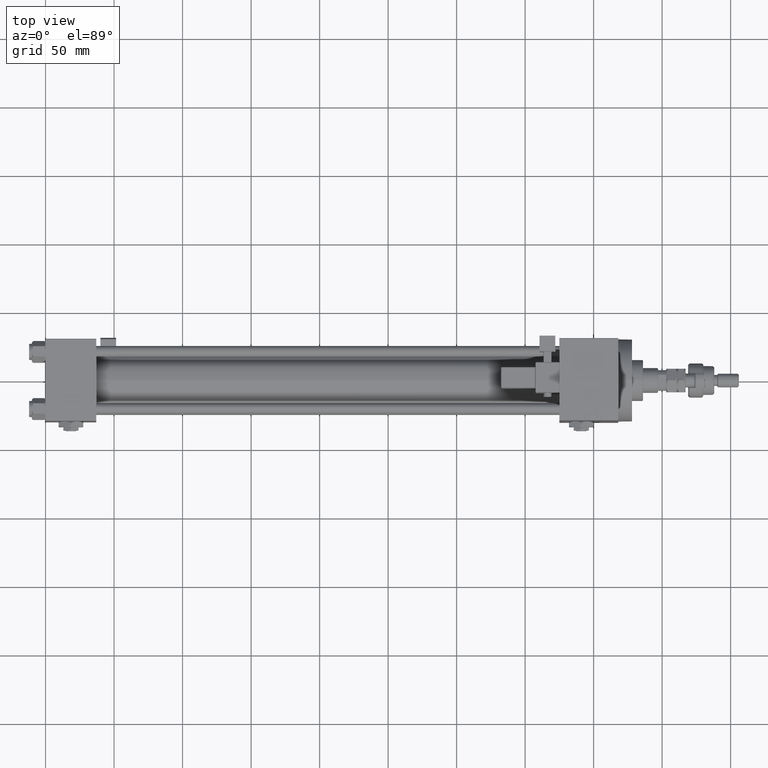
[diagram: clean part render]
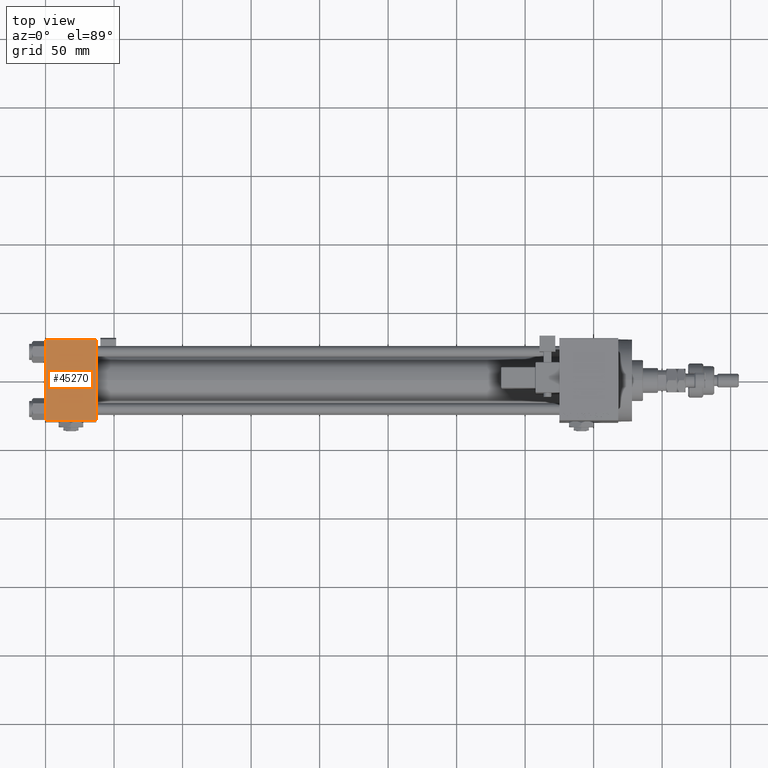
[diagram: same view with one face highlighted and labeled with its STEP entity id]
A machine part, top view. The second image highlights one B-rep face of the part: STEP entity #45270.
In plain terms, the highlighted planar face has unit normal (0, 0, -1).
Its self-contained STEP definition (entity closure, byte-faithful):
#653 = VERTEX_POINT ( 'NONE', #3364 ) ;
#1716 = DIRECTION ( 'NONE',  ( 1.000000000000000000, 0.000000000000000000, 0.000000000000000000 ) ) ;
#3364 = CARTESIAN_POINT ( 'NONE',  ( 37.00000000000000000, 29.49999999999999289, 30.00000000000000000 ) ) ;
#4483 = DIRECTION ( 'NONE',  ( -1.000000000000000000, 0.000000000000000000, 0.000000000000000000 ) ) ;
#4820 = CARTESIAN_POINT ( 'NONE',  ( 37.00000000000000000, 29.99999999999999289, 30.00000000000000000 ) ) ;
#7028 = VERTEX_POINT ( 'NONE', #51157 ) ;
#8303 = ORIENTED_EDGE ( 'NONE', *, *, #39056, .T. ) ;
#8410 = LINE ( 'NONE', #4820, #32869 ) ;
#8612 = LINE ( 'NONE', #45674, #48942 ) ;
#9210 = CARTESIAN_POINT ( 'NONE',  ( 37.00000000000000000, -29.49999999999998579, 29.99999999999999289 ) ) ;
#11327 = VECTOR ( 'NONE', #15986, 1000.000000000000000 ) ;
#11938 = ORIENTED_EDGE ( 'NONE', *, *, #34884, .T. ) ;
#13858 = CARTESIAN_POINT ( 'NONE',  ( 0.000000000000000000, 29.49999999999999289, 30.00000000000000000 ) ) ;
#14118 = AXIS2_PLACEMENT_3D ( 'NONE', #50184, #37794, #21092 ) ;
#15375 = FACE_OUTER_BOUND ( 'NONE', #25571, .T. ) ;
#15986 = DIRECTION ( 'NONE',  ( 0.000000000000000000, -1.000000000000000000, -1.156482317317871725E-16 ) ) ;
#21092 = DIRECTION ( 'NONE',  ( 0.000000000000000000, 1.000000000000000000, 1.156482317317871725E-16 ) ) ;
#23401 = CARTESIAN_POINT ( 'NONE',  ( 0.000000000000000000, 29.99999999999999289, 30.00000000000000000 ) ) ;
#25342 = EDGE_CURVE ( 'NONE', #653, #30373, #8410, .T. ) ;
#25571 = EDGE_LOOP ( 'NONE', ( #8303, #36013, #53220, #11938 ) ) ;
#28061 = LINE ( 'NONE', #23401, #11327 ) ;
#28801 = VECTOR ( 'NONE', #1716, 1000.000000000000000 ) ;
#30373 = VERTEX_POINT ( 'NONE', #9210 ) ;
#32762 = VERTEX_POINT ( 'NONE', #13858 ) ;
#32869 = VECTOR ( 'NONE', #41874, 1000.000000000000000 ) ;
#34884 = EDGE_CURVE ( 'NONE', #653, #32762, #8612, .T. ) ;
#35073 = EDGE_CURVE ( 'NONE', #7028, #30373, #42617, .T. ) ;
#36013 = ORIENTED_EDGE ( 'NONE', *, *, #35073, .T. ) ;
#37794 = DIRECTION ( 'NONE',  ( 0.000000000000000000, 1.156482317317871725E-16, -1.000000000000000000 ) ) ;
#39056 = EDGE_CURVE ( 'NONE', #32762, #7028, #28061, .T. ) ;
#41874 = DIRECTION ( 'NONE',  ( 0.000000000000000000, -1.000000000000000000, -1.156482317317871725E-16 ) ) ;
#42617 = LINE ( 'NONE', #43698, #28801 ) ;
#43698 = CARTESIAN_POINT ( 'NONE',  ( 37.00000000000000000, -29.50000000000000000, 29.99999999999999289 ) ) ;
#45270 = ADVANCED_FACE ( 'NONE', ( #15375 ), #54302, .F. ) ;
#45674 = CARTESIAN_POINT ( 'NONE',  ( 0.000000000000000000, 29.49999999999999289, 30.00000000000000000 ) ) ;
#48942 = VECTOR ( 'NONE', #4483, 1000.000000000000000 ) ;
#50184 = CARTESIAN_POINT ( 'NONE',  ( 37.00000000000000000, 29.99999999999999289, 30.00000000000000000 ) ) ;
#51157 = CARTESIAN_POINT ( 'NONE',  ( 0.000000000000000000, -29.49999999999998579, 29.99999999999999289 ) ) ;
#53220 = ORIENTED_EDGE ( 'NONE', *, *, #25342, .F. ) ;
#54302 = PLANE ( 'NONE',  #14118 ) ;